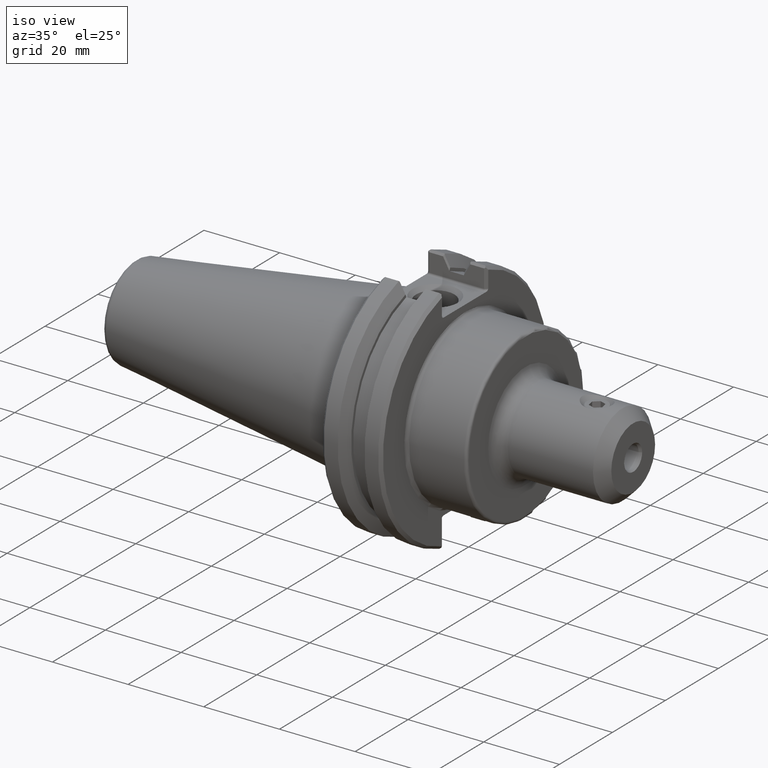
[diagram: clean part render]
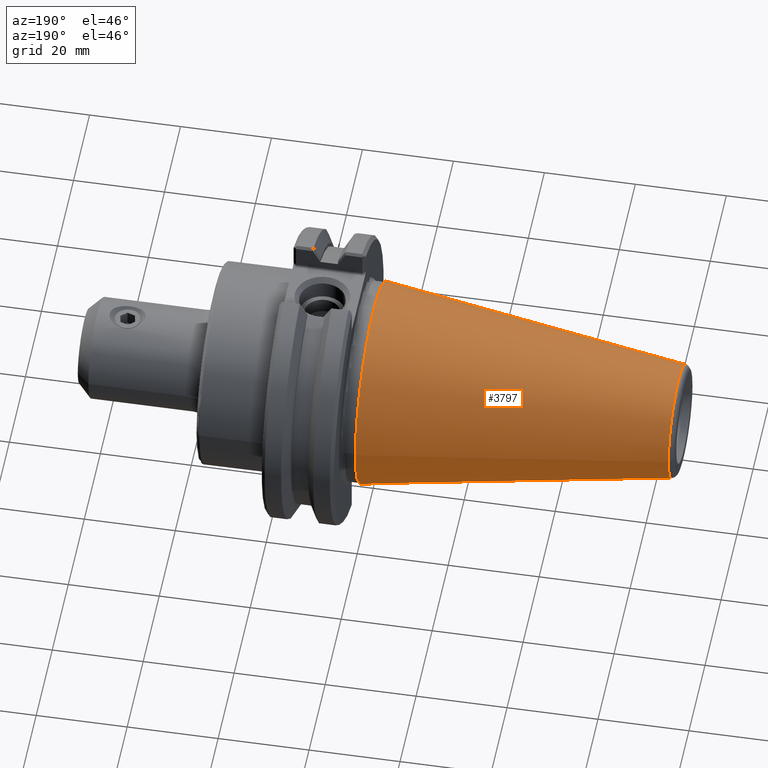
[diagram: tour spotlight — one face highlighted and labeled with its STEP entity id]
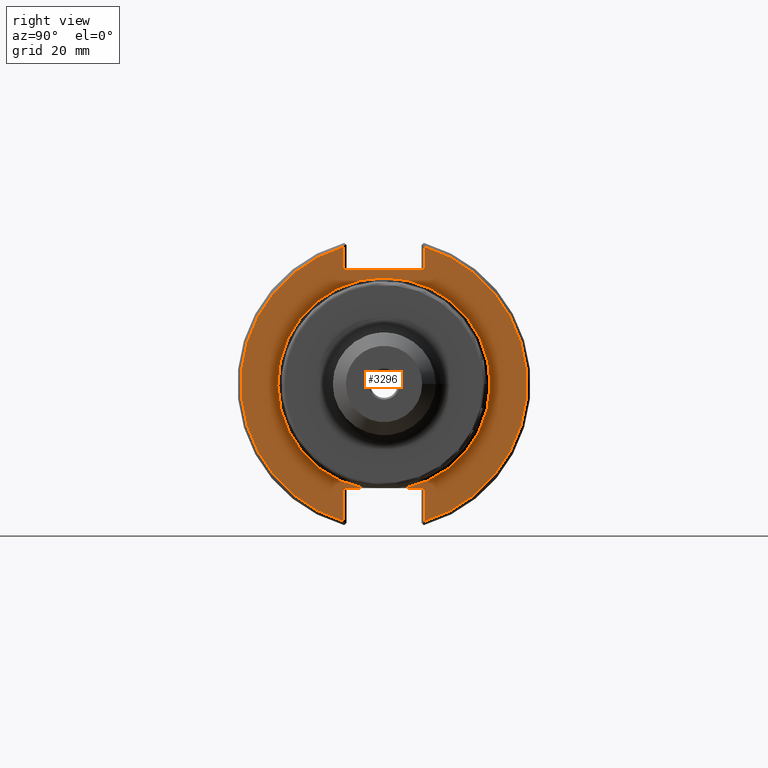
[diagram: tour spotlight — one face highlighted and labeled with its STEP entity id]
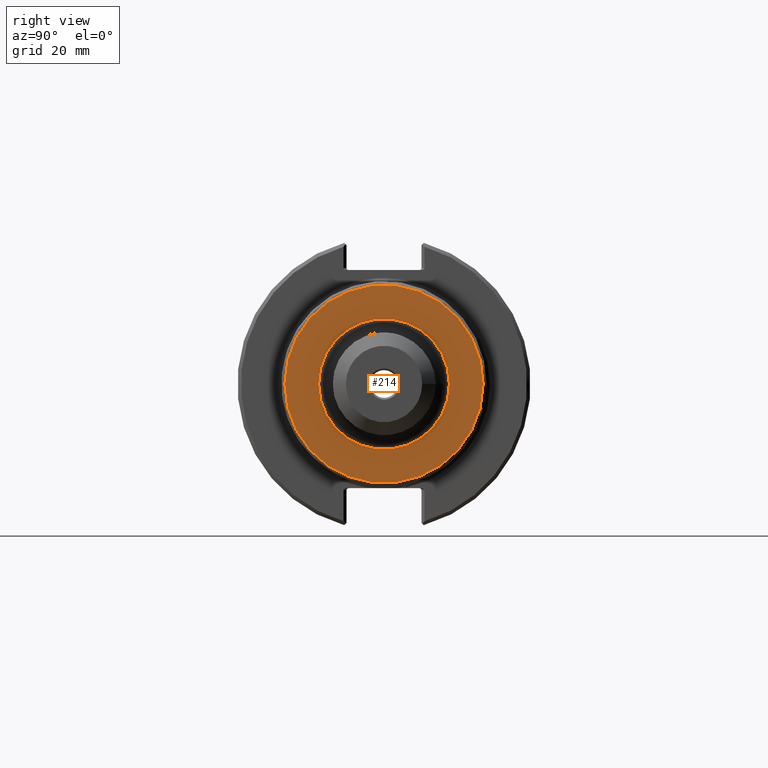
[diagram: tour spotlight — one face highlighted and labeled with its STEP entity id]
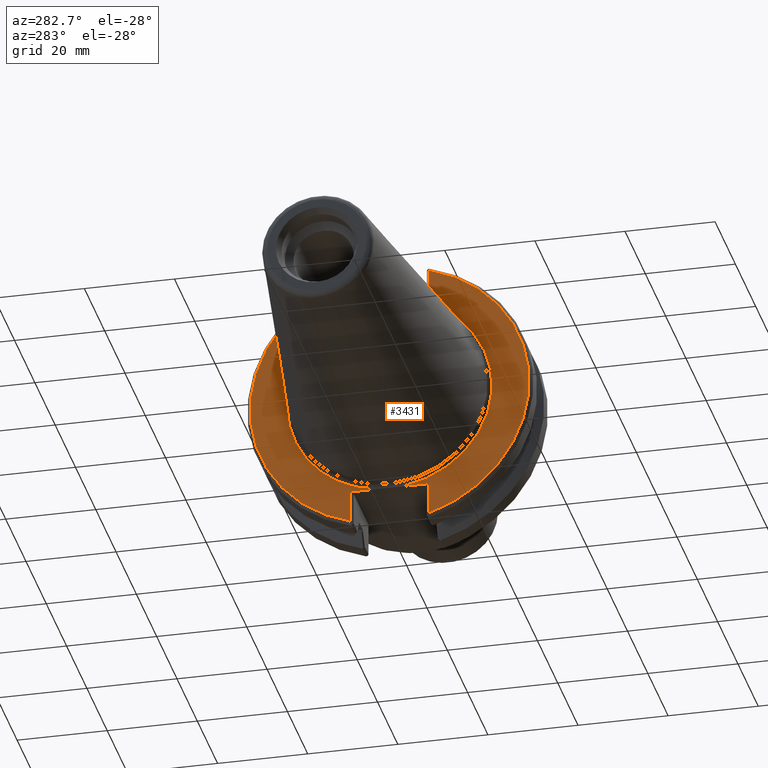
[diagram: tour spotlight — one face highlighted and labeled with its STEP entity id]
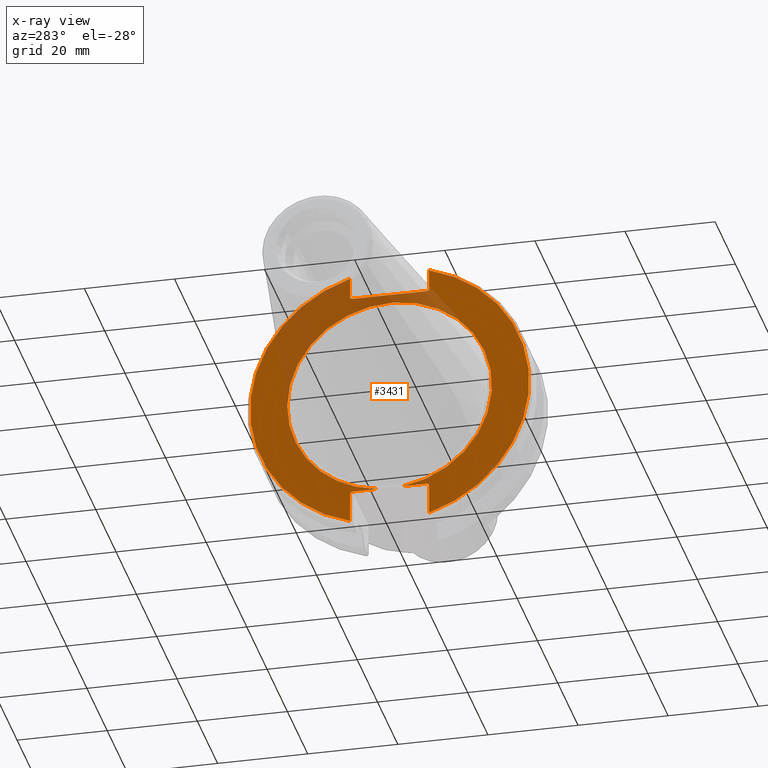
[diagram: x-ray of the same camera — body ghosted, this tour face saturated]
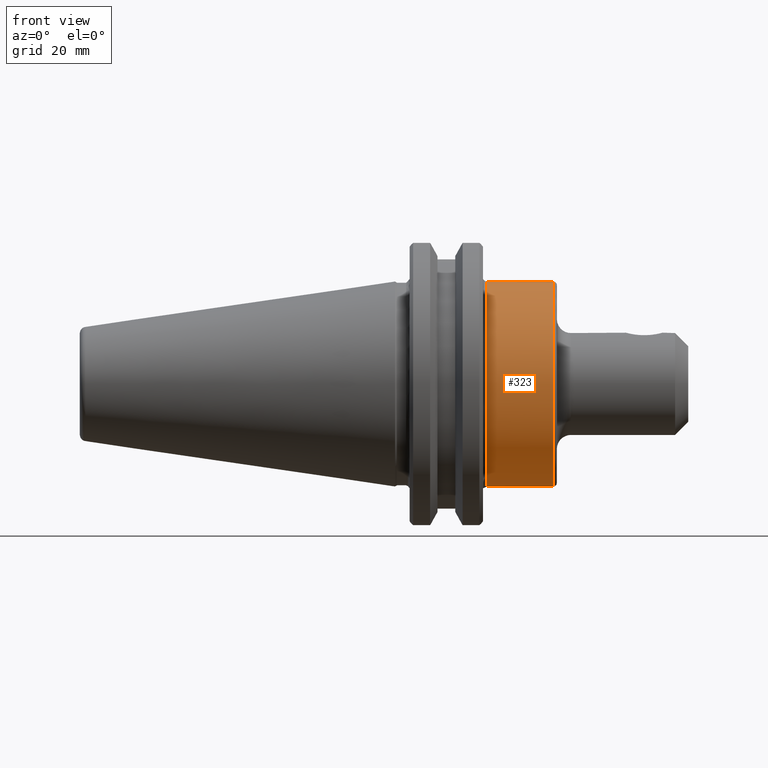
[diagram: tour spotlight — one face highlighted and labeled with its STEP entity id]
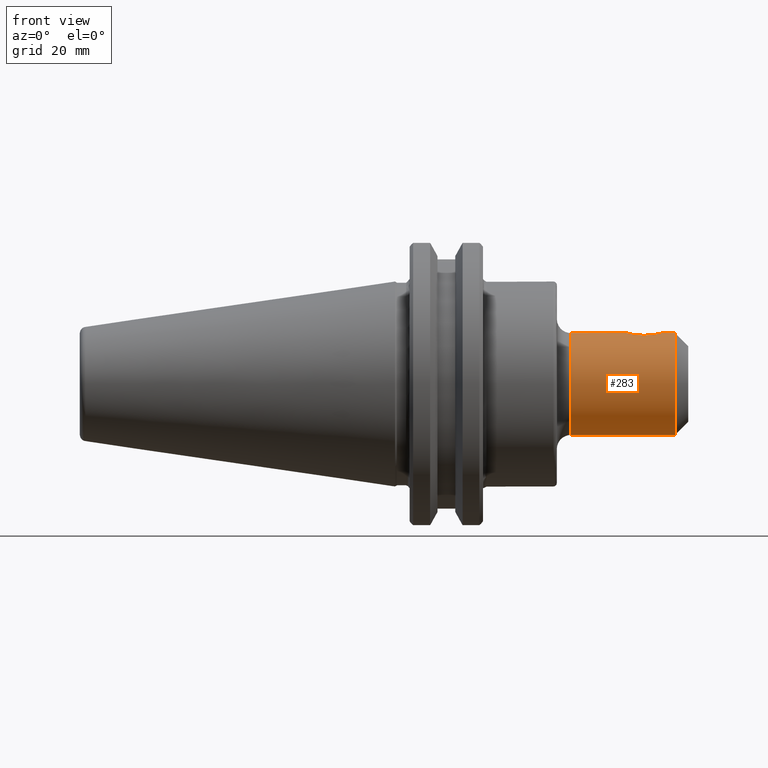
[diagram: tour spotlight — one face highlighted and labeled with its STEP entity id]
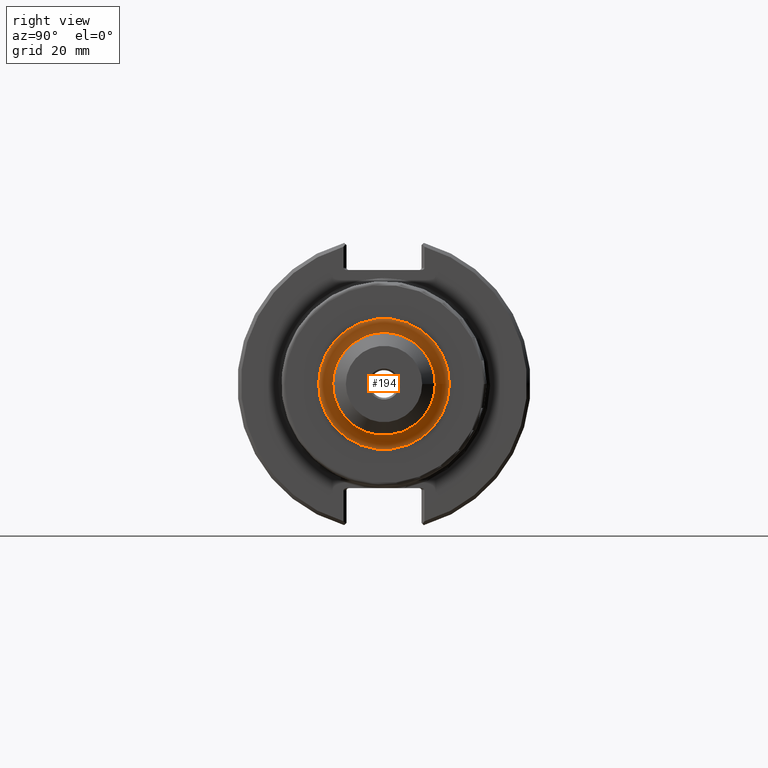
[diagram: tour spotlight — one face highlighted and labeled with its STEP entity id]
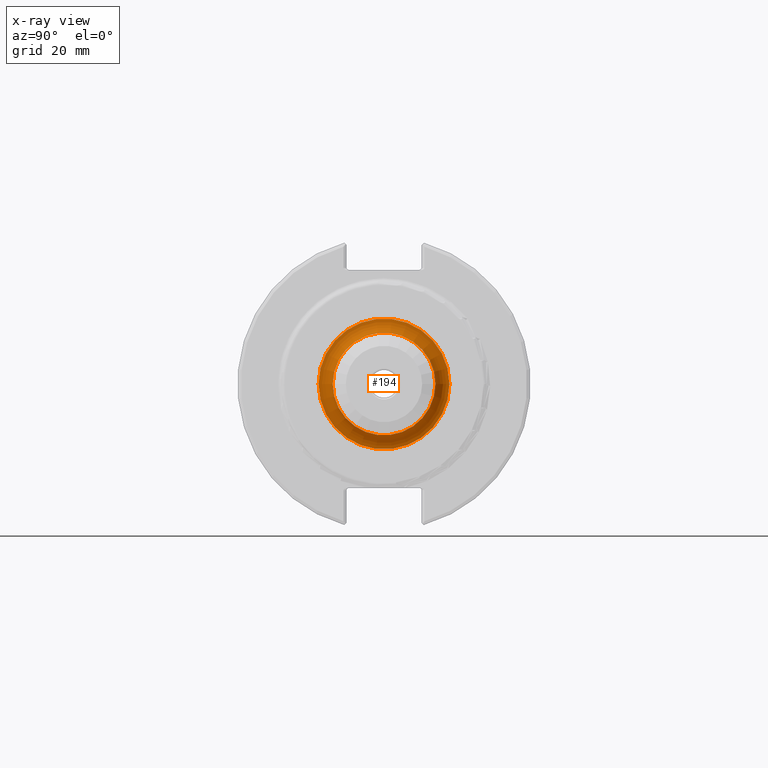
[diagram: x-ray of the same camera — body ghosted, this tour face saturated]
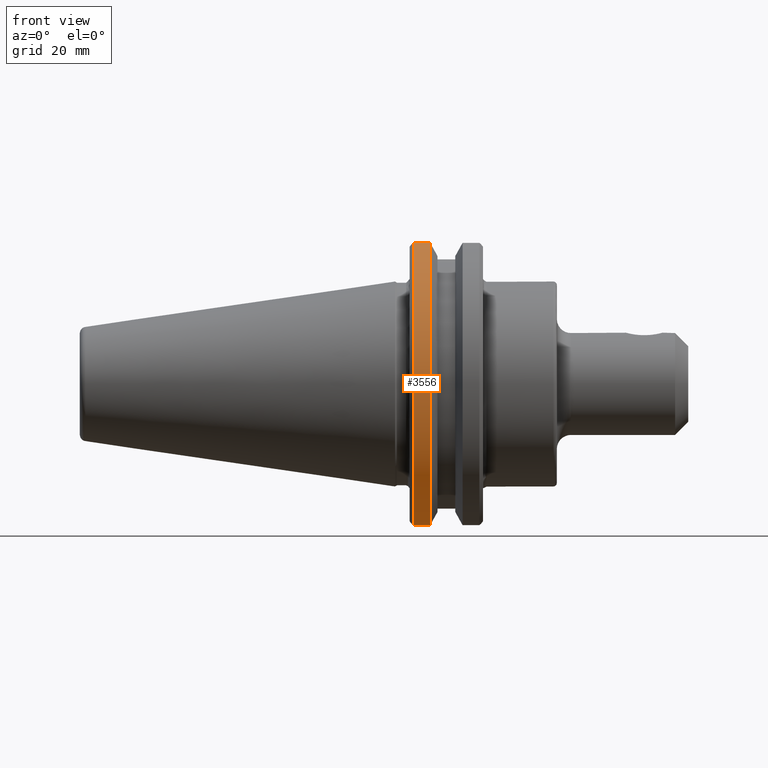
[diagram: tour spotlight — one face highlighted and labeled with its STEP entity id]
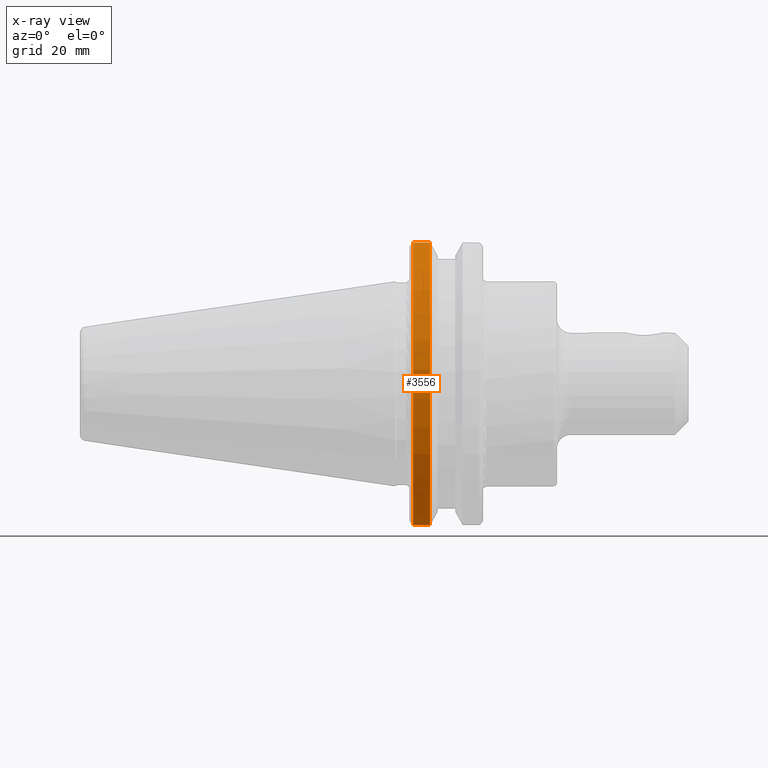
[diagram: x-ray of the same camera — body ghosted, this tour face saturated]
A machine part: a face-by-face anatomy tour. The part has 104 B-rep faces; the first image is the clean iso view, then the 8 largest visible faces are spotlighted one at a time (largest first), each with its STEP entity span.

Face 1 — auxiliary view, entity #3797. In plain terms, the highlighted conical surface has half-angle 8.297 deg.
Definition (entity closure, byte-faithful):
#3654=CARTESIAN_POINT('',(0.0,0.875,0.0));
#3655=VERTEX_POINT('',#3654);
#3656=CARTESIAN_POINT('',(0.0,-1.608021E-036,0.0));
#3657=DIRECTION('',(1.0,-1.624514E-013,0.0));
#3658=DIRECTION('',(1.624514E-013,1.0,0.0));
#3659=AXIS2_PLACEMENT_3D('',#3656,#3657,#3658);
#3660=CIRCLE('',#3659,0.875);
#3661=EDGE_CURVE('',#3655,#3655,#3660,.T.);
#3762=CARTESIAN_POINT('',(-2.640792437025113,0.48989126010311,-1.199848E-016));
#3763=VERTEX_POINT('',#3762);
#3764=CARTESIAN_POINT('',(-2.640792437025115,-1.132078E-014,-5.999239E-017));
#3765=DIRECTION('',(-1.0,0.0,0.0));
#3766=DIRECTION('',(0.0,-1.0,0.0));
#3767=AXIS2_PLACEMENT_3D('',#3764,#3765,#3766);
#3768=CIRCLE('',#3767,0.489891260103121);
#3769=EDGE_CURVE('',#3763,#3763,#3768,.T.);
#3786=CARTESIAN_POINT('',(-1.3435,-3.173511E-036,0.0));
#3787=DIRECTION('',(1.0,1.165233E-036,0.0));
#3788=DIRECTION('',(1.624514E-013,1.0,0.0));
#3789=AXIS2_PLACEMENT_3D('',#3786,#3787,#3788);
#3790=CONICAL_SURFACE('',#3789,0.679076388285061,8.296999999999994);
#3791=ORIENTED_EDGE('',*,*,#3661,.F.);
#3792=EDGE_LOOP('',(#3791));
#3793=FACE_OUTER_BOUND('',#3792,.T.);
#3794=ORIENTED_EDGE('',*,*,#3769,.F.);
#3795=EDGE_LOOP('',(#3794));
#3796=FACE_BOUND('',#3795,.T.);
#3797=ADVANCED_FACE('',(#3793,#3796),#3790,.T.);

Face 2 — right view, entity #3296. In plain terms, the highlighted planar face has unit normal (1, 0, 0).
Definition (entity closure, byte-faithful):
#329=CARTESIAN_POINT('',(0.75,0.17458808664969,-0.888));
#330=VERTEX_POINT('',#329);
#331=CARTESIAN_POINT('',(0.75,-0.17458808664969,-0.888));
#332=VERTEX_POINT('',#331);
#347=CARTESIAN_POINT('',(0.75,-7.340965E-037,0.0));
#348=DIRECTION('',(1.0,0.0,0.0));
#349=DIRECTION('',(0.0,-1.0,0.0));
#350=AXIS2_PLACEMENT_3D('',#347,#348,#349);
#351=CIRCLE('',#350,0.905);
#352=EDGE_CURVE('',#330,#332,#351,.T.);
#2554=CARTESIAN_POINT('',(0.75,0.316715728752819,0.972));
#2555=VERTEX_POINT('',#2554);
#2562=CARTESIAN_POINT('',(0.75,0.345000000000281,0.992));
#2563=VERTEX_POINT('',#2562);
#2564=CARTESIAN_POINT('',(0.75,0.316715728752819,0.992));
#2565=DIRECTION('',(1.0,0.0,0.0));
#2566=DIRECTION('',(0.0,1.0,0.0));
#2567=AXIS2_PLACEMENT_3D('',#2564,#2565,#2566);
#2568=ELLIPSE('',#2567,0.028284271247462,0.02);
#2569=EDGE_CURVE('',#2555,#2563,#2568,.T.);
#2612=CARTESIAN_POINT('',(0.75,0.345000000000281,1.170202973846762));
#2613=VERTEX_POINT('',#2612);
#2614=CARTESIAN_POINT('',(0.75,0.345000000000281,0.992));
#2615=DIRECTION('',(0.0,0.0,1.0));
#2616=VECTOR('',#2615,0.178202973846762);
#2617=LINE('',#2614,#2616);
#2618=EDGE_CURVE('',#2563,#2613,#2617,.T.);
#2636=CARTESIAN_POINT('',(0.75,-0.344999999999719,0.992));
#2637=VERTEX_POINT('',#2636);
#2644=CARTESIAN_POINT('',(0.75,-0.316715728752257,0.972));
#2645=VERTEX_POINT('',#2644);
#2646=CARTESIAN_POINT('',(0.75,-0.316715728752257,0.992));
#2647=DIRECTION('',(1.0,0.0,0.0));
#2648=DIRECTION('',(0.0,-1.0,0.0));
#2649=AXIS2_PLACEMENT_3D('',#2646,#2647,#2648);
#2650=ELLIPSE('',#2649,0.028284271247462,0.02);
#2651=EDGE_CURVE('',#2637,#2645,#2650,.T.);
#2743=CARTESIAN_POINT('',(0.75,-0.344999999999719,1.170202973846928));
#2744=VERTEX_POINT('',#2743);
#2751=CARTESIAN_POINT('',(0.75,-0.344999999999719,1.170202973846928));
#2752=DIRECTION('',(0.0,0.0,-1.0));
#2753=VECTOR('',#2752,0.178202973846928);
#2754=LINE('',#2751,#2753);
#2755=EDGE_CURVE('',#2744,#2637,#2754,.T.);
#2855=CARTESIAN_POINT('',(0.75,-0.316715728752198,-0.888));
#2856=VERTEX_POINT('',#2855);
#2863=CARTESIAN_POINT('',(0.75,-0.34499999999966,-0.908));
#2864=VERTEX_POINT('',#2863);
#2865=CARTESIAN_POINT('',(0.75,-0.316715728752198,-0.908));
#2866=DIRECTION('',(1.0,0.0,0.0));
#2867=DIRECTION('',(0.0,-1.0,0.0));
#2868=AXIS2_PLACEMENT_3D('',#2865,#2866,#2867);
#2869=ELLIPSE('',#2868,0.028284271247462,0.02);
#2870=EDGE_CURVE('',#2856,#2864,#2869,.T.);
#2920=CARTESIAN_POINT('',(0.75,-0.34499999999966,-1.170202973846945));
#2921=VERTEX_POINT('',#2920);
#2922=CARTESIAN_POINT('',(0.75,-0.34499999999966,-0.908));
#2923=DIRECTION('',(0.0,0.0,-1.0));
#2924=VECTOR('',#2923,0.262202973846945);
#2925=LINE('',#2922,#2924);
#2926=EDGE_CURVE('',#2864,#2921,#2925,.T.);
#2944=CARTESIAN_POINT('',(0.75,0.34500000000034,-0.908));
#2945=VERTEX_POINT('',#2944);
#2946=CARTESIAN_POINT('',(0.75,0.316715728752878,-0.888));
#2947=VERTEX_POINT('',#2946);
#2948=CARTESIAN_POINT('',(0.75,0.316715728752878,-0.908));
#2949=DIRECTION('',(1.0,0.0,0.0));
#2950=DIRECTION('',(0.0,1.0,0.0));
#2951=AXIS2_PLACEMENT_3D('',#2948,#2949,#2950);
#2952=ELLIPSE('',#2951,0.028284271247462,0.02);
#2953=EDGE_CURVE('',#2945,#2947,#2952,.T.);
#3051=CARTESIAN_POINT('',(0.75,0.34500000000034,-1.170202973846745));
#3052=VERTEX_POINT('',#3051);
#3059=CARTESIAN_POINT('',(0.75,0.34500000000034,-1.170202973846745));
#3060=DIRECTION('',(0.0,0.0,1.0));
#3061=VECTOR('',#3060,0.262202973846744);
#3062=LINE('',#3059,#3061);
#3063=EDGE_CURVE('',#3052,#2945,#3062,.T.);
#3156=CARTESIAN_POINT('',(0.75,0.316715728752819,0.972));
#3157=DIRECTION('',(0.0,-1.0,0.0));
#3158=VECTOR('',#3157,0.633431457505077);
#3159=LINE('',#3156,#3158);
#3160=EDGE_CURVE('',#2555,#2645,#3159,.T.);
#3225=CARTESIAN_POINT('',(0.75,-7.340965E-037,0.0));
#3226=DIRECTION('',(-1.0,0.0,0.0));
#3227=DIRECTION('',(0.0,-1.0,0.0));
#3228=AXIS2_PLACEMENT_3D('',#3225,#3226,#3227);
#3229=CIRCLE('',#3228,1.22);
#3230=EDGE_CURVE('',#2921,#2744,#3229,.T.);
#3259=CARTESIAN_POINT('',(0.75,1.0625,0.0));
#3260=DIRECTION('',(1.0,0.0,0.0));
#3261=DIRECTION('',(0.0,0.0,-1.0));
#3262=AXIS2_PLACEMENT_3D('',#3259,#3260,#3261);
#3263=PLANE('',#3262);
#3264=ORIENTED_EDGE('',*,*,#352,.F.);
#3265=CARTESIAN_POINT('',(0.75,0.174588086649691,-0.888));
#3266=DIRECTION('',(0.0,1.0,0.0));
#3267=VECTOR('',#3266,0.142127642103188);
#3268=LINE('',#3265,#3267);
#3269=EDGE_CURVE('',#330,#2947,#3268,.T.);
#3270=ORIENTED_EDGE('',*,*,#3269,.T.);
#3271=ORIENTED_EDGE('',*,*,#2953,.F.);
#3272=ORIENTED_EDGE('',*,*,#3063,.F.);
#3273=CARTESIAN_POINT('',(0.75,-7.340965E-037,0.0));
#3274=DIRECTION('',(-1.0,0.0,0.0));
#3275=DIRECTION('',(0.0,1.0,0.0));
#3276=AXIS2_PLACEMENT_3D('',#3273,#3274,#3275);
#3277=CIRCLE('',#3276,1.22);
#3278=EDGE_CURVE('',#2613,#3052,#3277,.T.);
#3279=ORIENTED_EDGE('',*,*,#3278,.F.);
#3280=ORIENTED_EDGE('',*,*,#2618,.F.);
#3281=ORIENTED_EDGE('',*,*,#2569,.F.);
#3282=ORIENTED_EDGE('',*,*,#3160,.T.);
#3283=ORIENTED_EDGE('',*,*,#2651,.F.);
#3284=ORIENTED_EDGE('',*,*,#2755,.F.);
#3285=ORIENTED_EDGE('',*,*,#3230,.F.);
#3286=ORIENTED_EDGE('',*,*,#2926,.F.);
#3287=ORIENTED_EDGE('',*,*,#2870,.F.);
#3288=CARTESIAN_POINT('',(0.75,-0.316715728752198,-0.888));
#3289=DIRECTION('',(0.0,1.0,0.0));
#3290=VECTOR('',#3289,0.142127642102508);
#3291=LINE('',#3288,#3290);
#3292=EDGE_CURVE('',#2856,#332,#3291,.T.);
#3293=ORIENTED_EDGE('',*,*,#3292,.T.);
#3294=EDGE_LOOP('',(#3264,#3270,#3271,#3272,#3279,#3280,#3281,#3282,#3283,#3284,#3285,#3286,#3287,#3293));
#3295=FACE_OUTER_BOUND('',#3294,.T.);
#3296=ADVANCED_FACE('',(#3295),#3263,.T.);

Face 3 — right view, entity #214. In plain terms, the highlighted planar face has unit normal (1, 0, 0).
Definition (entity closure, byte-faithful):
#183=CARTESIAN_POINT('',(1.38,0.5575,1.365481E-016));
#184=VERTEX_POINT('',#183);
#185=CARTESIAN_POINT('',(1.38,-1.398279E-037,0.0));
#186=DIRECTION('',(1.0,0.0,0.0));
#187=DIRECTION('',(0.0,-1.0,0.0));
#188=AXIS2_PLACEMENT_3D('',#185,#186,#187);
#189=CIRCLE('',#188,0.5575);
#190=EDGE_CURVE('',#184,#184,#189,.T.);
#195=CARTESIAN_POINT('',(1.38,0.4375,0.0));
#196=DIRECTION('',(1.0,0.0,0.0));
#197=DIRECTION('',(0.0,0.0,-1.0));
#198=AXIS2_PLACEMENT_3D('',#195,#196,#197);
#199=PLANE('',#198);
#200=CARTESIAN_POINT('',(1.38,0.845,-2.069653E-016));
#201=VERTEX_POINT('',#200);
#202=CARTESIAN_POINT('',(1.38,1.561963E-052,0.0));
#203=DIRECTION('',(-1.0,0.0,0.0));
#204=DIRECTION('',(0.0,-1.0,0.0));
#205=AXIS2_PLACEMENT_3D('',#202,#203,#204);
#206=CIRCLE('',#205,0.845);
#207=EDGE_CURVE('',#201,#201,#206,.T.);
#208=ORIENTED_EDGE('',*,*,#207,.F.);
#209=EDGE_LOOP('',(#208));
#210=FACE_OUTER_BOUND('',#209,.T.);
#211=ORIENTED_EDGE('',*,*,#190,.F.);
#212=EDGE_LOOP('',(#211));
#213=FACE_BOUND('',#212,.T.);
#214=ADVANCED_FACE('',(#210,#213),#199,.T.);

Face 4 — auxiliary view, entity #3431. An x-ray twin of the same camera follows (body ghosted, this face saturated) — the face is partly hidden behind the body. In plain terms, the highlighted planar face has unit normal (-1, 0, 0).
Definition (entity closure, byte-faithful):
#2489=CARTESIAN_POINT('',(0.125,0.345000000000281,0.992));
#2490=VERTEX_POINT('',#2489);
#2497=CARTESIAN_POINT('',(0.125,0.316715728752819,0.972));
#2498=VERTEX_POINT('',#2497);
#2499=CARTESIAN_POINT('',(0.125,0.316715728752819,0.992));
#2500=DIRECTION('',(-1.0,0.0,0.0));
#2501=DIRECTION('',(0.0,1.0,0.0));
#2502=AXIS2_PLACEMENT_3D('',#2499,#2500,#2501);
#2503=ELLIPSE('',#2502,0.028284271247462,0.02);
#2504=EDGE_CURVE('',#2490,#2498,#2503,.T.);
#2589=CARTESIAN_POINT('',(0.125,0.345000000000281,1.170202973846762));
#2590=VERTEX_POINT('',#2589);
#2597=CARTESIAN_POINT('',(0.125,0.345000000000281,1.170202973846762));
#2598=DIRECTION('',(0.0,0.0,-1.0));
#2599=VECTOR('',#2598,0.178202973846762);
#2600=LINE('',#2597,#2599);
#2601=EDGE_CURVE('',#2590,#2490,#2600,.T.);
#2701=CARTESIAN_POINT('',(0.125,-0.316715728752257,0.972));
#2702=VERTEX_POINT('',#2701);
#2709=CARTESIAN_POINT('',(0.125,-0.344999999999719,0.992));
#2710=VERTEX_POINT('',#2709);
#2711=CARTESIAN_POINT('',(0.125,-0.316715728752257,0.992));
#2712=DIRECTION('',(-1.0,0.0,0.0));
#2713=DIRECTION('',(0.0,-1.0,0.0));
#2714=AXIS2_PLACEMENT_3D('',#2711,#2712,#2713);
#2715=ELLIPSE('',#2714,0.028284271247462,0.02);
#2716=EDGE_CURVE('',#2702,#2710,#2715,.T.);
#2766=CARTESIAN_POINT('',(0.125,-0.344999999999719,1.170202973846928));
#2767=VERTEX_POINT('',#2766);
#2768=CARTESIAN_POINT('',(0.125,-0.344999999999719,0.992));
#2769=DIRECTION('',(0.0,0.0,1.0));
#2770=VECTOR('',#2769,0.178202973846928);
#2771=LINE('',#2768,#2770);
#2772=EDGE_CURVE('',#2710,#2767,#2771,.T.);
#2790=CARTESIAN_POINT('',(0.125,-0.344999999999765,-0.908));
#2791=VERTEX_POINT('',#2790);
#2792=CARTESIAN_POINT('',(0.125,-0.316715728752299,-0.888));
#2793=VERTEX_POINT('',#2792);
#2794=CARTESIAN_POINT('',(0.125,-0.316715728752299,-0.908));
#2795=DIRECTION('',(-1.0,0.0,0.0));
#2796=DIRECTION('',(0.0,-1.0,0.0));
#2797=AXIS2_PLACEMENT_3D('',#2794,#2795,#2796);
#2798=ELLIPSE('',#2797,0.028284271247467,0.02);
#2799=EDGE_CURVE('',#2791,#2793,#2798,.T.);
#2897=CARTESIAN_POINT('',(0.125,-0.344999999999765,-1.170202973846914));
#2898=VERTEX_POINT('',#2897);
#2905=CARTESIAN_POINT('',(0.125,-0.344999999999765,-1.170202973846914));
#2906=DIRECTION('',(0.0,0.0,1.0));
#2907=VECTOR('',#2906,0.262202973846914);
#2908=LINE('',#2905,#2907);
#2909=EDGE_CURVE('',#2898,#2791,#2908,.T.);
#3009=CARTESIAN_POINT('',(0.125,0.316715728752777,-0.888));
#3010=VERTEX_POINT('',#3009);
#3017=CARTESIAN_POINT('',(0.125,0.345000000000235,-0.908));
#3018=VERTEX_POINT('',#3017);
#3019=CARTESIAN_POINT('',(0.125,0.316715728752777,-0.908));
#3020=DIRECTION('',(-1.0,0.0,0.0));
#3021=DIRECTION('',(0.0,1.0,0.0));
#3022=AXIS2_PLACEMENT_3D('',#3019,#3020,#3021);
#3023=ELLIPSE('',#3022,0.028284271247457,0.02);
#3024=EDGE_CURVE('',#3010,#3018,#3023,.T.);
#3074=CARTESIAN_POINT('',(0.125,0.345000000000235,-1.170202973846776));
#3075=VERTEX_POINT('',#3074);
#3076=CARTESIAN_POINT('',(0.125,0.345000000000235,-0.908));
#3077=DIRECTION('',(0.0,0.0,-1.0));
#3078=VECTOR('',#3077,0.262202973846775);
#3079=LINE('',#3076,#3078);
#3080=EDGE_CURVE('',#3018,#3075,#3079,.T.);
#3147=CARTESIAN_POINT('',(0.125,0.316715728752819,0.972));
#3148=DIRECTION('',(0.0,-1.0,0.0));
#3149=VECTOR('',#3148,0.633431457505076);
#3150=LINE('',#3147,#3149);
#3151=EDGE_CURVE('',#2498,#2702,#3150,.T.);
#3349=CARTESIAN_POINT('',(0.125,-0.11171839597846,-0.888));
#3350=VERTEX_POINT('',#3349);
#3351=CARTESIAN_POINT('',(0.125,0.11171839597846,-0.888));
#3352=VERTEX_POINT('',#3351);
#3367=CARTESIAN_POINT('',(0.125,3.495698E-038,0.0));
#3368=DIRECTION('',(-1.0,0.0,0.0));
#3369=DIRECTION('',(0.0,-1.0,0.0));
#3370=AXIS2_PLACEMENT_3D('',#3367,#3368,#3369);
#3371=CIRCLE('',#3370,0.895);
#3372=EDGE_CURVE('',#3350,#3352,#3371,.T.);
#3388=CARTESIAN_POINT('',(0.125,1.0625,0.0));
#3389=DIRECTION('',(-1.0,0.0,0.0));
#3390=DIRECTION('',(0.0,0.0,1.0));
#3391=AXIS2_PLACEMENT_3D('',#3388,#3389,#3390);
#3392=PLANE('',#3391);
#3393=ORIENTED_EDGE('',*,*,#3372,.F.);
#3394=CARTESIAN_POINT('',(0.125,-0.316715728752299,-0.888));
#3395=DIRECTION('',(0.0,1.0,0.0));
#3396=VECTOR('',#3395,0.204997332773839);
#3397=LINE('',#3394,#3396);
#3398=EDGE_CURVE('',#2793,#3350,#3397,.T.);
#3399=ORIENTED_EDGE('',*,*,#3398,.F.);
#3400=ORIENTED_EDGE('',*,*,#2799,.F.);
#3401=ORIENTED_EDGE('',*,*,#2909,.F.);
#3402=CARTESIAN_POINT('',(0.125,-1.462367E-036,0.0));
#3403=DIRECTION('',(1.0,0.0,0.0));
#3404=DIRECTION('',(0.0,-1.0,0.0));
#3405=AXIS2_PLACEMENT_3D('',#3402,#3403,#3404);
#3406=CIRCLE('',#3405,1.22);
#3407=EDGE_CURVE('',#2767,#2898,#3406,.T.);
#3408=ORIENTED_EDGE('',*,*,#3407,.F.);
#3409=ORIENTED_EDGE('',*,*,#2772,.F.);
#3410=ORIENTED_EDGE('',*,*,#2716,.F.);
#3411=ORIENTED_EDGE('',*,*,#3151,.F.);
#3412=ORIENTED_EDGE('',*,*,#2504,.F.);
#3413=ORIENTED_EDGE('',*,*,#2601,.F.);
#3414=CARTESIAN_POINT('',(0.125,-1.462367E-036,0.0));
#3415=DIRECTION('',(1.0,0.0,0.0));
#3416=DIRECTION('',(0.0,1.0,0.0));
#3417=AXIS2_PLACEMENT_3D('',#3414,#3415,#3416);
#3418=CIRCLE('',#3417,1.22);
#3419=EDGE_CURVE('',#3075,#2590,#3418,.T.);
#3420=ORIENTED_EDGE('',*,*,#3419,.F.);
#3421=ORIENTED_EDGE('',*,*,#3080,.F.);
#3422=ORIENTED_EDGE('',*,*,#3024,.F.);
#3423=CARTESIAN_POINT('',(0.125,0.11171839597846,-0.888));
#3424=DIRECTION('',(0.0,1.0,0.0));
#3425=VECTOR('',#3424,0.204997332774318);
#3426=LINE('',#3423,#3425);
#3427=EDGE_CURVE('',#3352,#3010,#3426,.T.);
#3428=ORIENTED_EDGE('',*,*,#3427,.F.);
#3429=EDGE_LOOP('',(#3393,#3399,#3400,#3401,#3408,#3409,#3410,#3411,#3412,#3413,#3420,#3421,#3422,#3428));
#3430=FACE_OUTER_BOUND('',#3429,.T.);
#3431=ADVANCED_FACE('',(#3430),#3392,.T.);

Face 5 — front view, entity #323. In plain terms, the highlighted cylindrical surface (bore or boss wall) has radius 22.225 mm, axis along (1, 0, 0).
Definition (entity closure, byte-faithful):
#289=CARTESIAN_POINT('',(1.35,0.875,0.0));
#290=VERTEX_POINT('',#289);
#291=CARTESIAN_POINT('',(1.35,-3.495698E-038,0.0));
#292=DIRECTION('',(1.0,0.0,0.0));
#293=DIRECTION('',(0.0,-1.0,0.0));
#294=AXIS2_PLACEMENT_3D('',#291,#292,#293);
#295=CIRCLE('',#294,0.875);
#296=EDGE_CURVE('',#290,#290,#295,.T.);
#304=CARTESIAN_POINT('',(1.065,-3.670483E-037,0.0));
#305=DIRECTION('',(1.0,1.165233E-036,0.0));
#306=DIRECTION('',(1.624514E-013,1.0,0.0));
#307=AXIS2_PLACEMENT_3D('',#304,#305,#306);
#308=CYLINDRICAL_SURFACE('',#307,0.875);
#309=CARTESIAN_POINT('',(0.78,0.875,-2.143132E-016));
#310=VERTEX_POINT('',#309);
#311=CARTESIAN_POINT('',(0.78,-6.991395E-037,0.0));
#312=DIRECTION('',(-1.0,0.0,0.0));
#313=DIRECTION('',(0.0,-1.0,0.0));
#314=AXIS2_PLACEMENT_3D('',#311,#312,#313);
#315=CIRCLE('',#314,0.875);
#316=EDGE_CURVE('',#310,#310,#315,.T.);
#317=ORIENTED_EDGE('',*,*,#316,.F.);
#318=EDGE_LOOP('',(#317));
#319=FACE_OUTER_BOUND('',#318,.T.);
#320=ORIENTED_EDGE('',*,*,#296,.F.);
#321=EDGE_LOOP('',(#320));
#322=FACE_BOUND('',#321,.T.);
#323=ADVANCED_FACE('',(#319,#322),#308,.T.);

Face 6 — front view, entity #283. In plain terms, the highlighted cylindrical surface (bore or boss wall) has radius 11.1125 mm, axis along (1, 0, 0).
Definition (entity closure, byte-faithful):
#172=CARTESIAN_POINT('',(1.5,0.4375,0.0));
#173=VERTEX_POINT('',#172);
#174=CARTESIAN_POINT('',(1.5,0.0,0.0));
#175=DIRECTION('',(-1.0,0.0,0.0));
#176=DIRECTION('',(0.0,-1.0,0.0));
#177=AXIS2_PLACEMENT_3D('',#174,#175,#176);
#178=CIRCLE('',#177,0.4375);
#179=EDGE_CURVE('',#173,#173,#178,.T.);
#215=CARTESIAN_POINT('',(1.884,0.0,0.0));
#216=DIRECTION('',(1.0,0.0,0.0));
#217=DIRECTION('',(0.0,1.0,0.0));
#218=AXIS2_PLACEMENT_3D('',#215,#216,#217);
#219=CYLINDRICAL_SURFACE('',#218,0.4375);
#220=CARTESIAN_POINT('',(2.388,0.4375,0.0));
#221=VERTEX_POINT('',#220);
#222=CARTESIAN_POINT('',(2.388,0.0,0.0));
#223=DIRECTION('',(1.0,0.0,0.0));
#224=DIRECTION('',(0.0,1.0,0.0));
#225=AXIS2_PLACEMENT_3D('',#222,#223,#224);
#226=CIRCLE('',#225,0.4375);
#227=EDGE_CURVE('',#221,#221,#226,.T.);
#228=ORIENTED_EDGE('',*,*,#227,.F.);
#229=EDGE_LOOP('',(#228));
#230=FACE_OUTER_BOUND('',#229,.T.);
#231=CARTESIAN_POINT('',(2.281349486363408,0.0,0.4375));
#232=VERTEX_POINT('',#231);
#233=CARTESIAN_POINT('',(1.968650513636592,0.0,0.4375));
#234=VERTEX_POINT('',#233);
#235=CARTESIAN_POINT('',(2.281349486363408,5.463696E-018,0.4375));
#236=CARTESIAN_POINT('',(2.281349486363408,-0.018767954954047,0.4375));
#237=CARTESIAN_POINT('',(2.276489452361049,-0.038222551256578,0.436175638579391));
#238=CARTESIAN_POINT('',(2.258256035546535,-0.072806127101495,0.431751566076665));
#239=CARTESIAN_POINT('',(2.244915946814442,-0.087962493847376,0.428729168732518));
#240=CARTESIAN_POINT('',(2.216293623886651,-0.110580104275026,0.423448053411965));
#241=CARTESIAN_POINT('',(2.199162162778989,-0.119881594299109,0.420803163767327));
#242=CARTESIAN_POINT('',(2.162564191407046,-0.132092548959182,0.417131219779092));
#243=CARTESIAN_POINT('',(2.143092373995499,-0.135,0.416150513636593));
#244=CARTESIAN_POINT('',(2.106907626004502,-0.135,0.416150513636593));
#245=CARTESIAN_POINT('',(2.087435808592955,-0.132092548959182,0.417131219779092));
#246=CARTESIAN_POINT('',(2.050837837221012,-0.119881594299109,0.420803163767327));
#247=CARTESIAN_POINT('',(2.033706376113349,-0.110580104275026,0.423448053411965));
#248=CARTESIAN_POINT('',(2.005084053185558,-0.087962493847376,0.428729168732518));
#249=CARTESIAN_POINT('',(1.991743964453465,-0.072806127101495,0.431751566076665));
#250=CARTESIAN_POINT('',(1.973510547638951,-0.038222551256578,0.436175638579391));
#251=CARTESIAN_POINT('',(1.968650513636592,-0.018767954954047,0.4375));
#252=CARTESIAN_POINT('',(1.968650513636592,5.463696E-018,0.4375));
#253=B_SPLINE_CURVE_WITH_KNOTS('',3,(#235,#236,#237,#238,#239,#240,#241,#242,#243,#244,#245,#246,#247,#248,#249,#250,#251,#252),.UNSPECIFIED.,.F.,.U.,(4,2,2,2,2,2,2,2,4),(0.561751413191067,0.704763229940901,0.847775046690735,0.985638936536434,1.123502826382133,1.261366716227832,1.399230606073531,1.542242422823365,1.6852542395732),.UNSPECIFIED.);
#254=EDGE_CURVE('',#232,#234,#253,.T.);
#255=ORIENTED_EDGE('',*,*,#254,.T.);
#256=CARTESIAN_POINT('',(1.968650513636592,-2.458663E-017,0.4375));
#257=CARTESIAN_POINT('',(1.968650513636592,0.018767954954046,0.4375));
#258=CARTESIAN_POINT('',(1.973510547638951,0.038222551256578,0.436175638579391));
#259=CARTESIAN_POINT('',(1.991743964453465,0.072806127101495,0.431751566076665));
#260=CARTESIAN_POINT('',(2.005084053185558,0.087962493847376,0.428729168732518));
#261=CARTESIAN_POINT('',(2.033706376113349,0.110580104275026,0.423448053411965));
#262=CARTESIAN_POINT('',(2.050837837221012,0.119881594299109,0.420803163767327));
#263=CARTESIAN_POINT('',(2.087435808592955,0.132092548959182,0.417131219779092));
#264=CARTESIAN_POINT('',(2.106907626004502,0.135,0.416150513636593));
#265=CARTESIAN_POINT('',(2.125,0.135,0.416150513636593));
#266=CARTESIAN_POINT('',(2.143092373995499,0.135,0.416150513636593));
#267=CARTESIAN_POINT('',(2.162564191407046,0.132092548959182,0.417131219779092));
#268=CARTESIAN_POINT('',(2.199162162778989,0.119881594299109,0.420803163767327));
#269=CARTESIAN_POINT('',(2.216293623886651,0.110580104275026,0.423448053411965));
#270=CARTESIAN_POINT('',(2.244915946814442,0.087962493847376,0.428729168732518));
#271=CARTESIAN_POINT('',(2.258256035546535,0.072806127101495,0.431751566076665));
#272=CARTESIAN_POINT('',(2.276489452361049,0.038222551256578,0.436175638579391));
#273=CARTESIAN_POINT('',(2.281349486363408,0.018767954954047,0.4375));
#274=CARTESIAN_POINT('',(2.281349486363408,0.0,0.4375));
#275=B_SPLINE_CURVE_WITH_KNOTS('',3,(#256,#257,#258,#259,#260,#261,#262,#263,#264,#265,#266,#267,#268,#269,#270,#271,#272,#273,#274),.UNSPECIFIED.,.F.,.U.,(4,2,2,2,3,2,2,2,4),(1.6852542395732,1.828266056323034,1.971277873072868,2.109141762918568,2.247005652764266,2.384869542609965,2.522733432455664,2.665745249205498,2.808757065955333),.UNSPECIFIED.);
#276=EDGE_CURVE('',#234,#232,#275,.T.);
#277=ORIENTED_EDGE('',*,*,#276,.T.);
#278=EDGE_LOOP('',(#255,#277));
#279=FACE_BOUND('',#278,.T.);
#280=ORIENTED_EDGE('',*,*,#179,.F.);
#281=EDGE_LOOP('',(#280));
#282=FACE_BOUND('',#281,.T.);
#283=ADVANCED_FACE('',(#230,#279,#282),#219,.T.);

Face 7 — right view, entity #194. An x-ray twin of the same camera follows (body ghosted, this face saturated) — the face is partly hidden behind the body. In plain terms, the highlighted toroidal blend (fillet) surface has major radius 14.1605 mm and minor (blend) radius 3.048 mm.
Definition (entity closure, byte-faithful):
#167=CARTESIAN_POINT('',(1.5,0.0,0.0));
#168=DIRECTION('',(-1.0,-1.165233E-036,0.0));
#169=DIRECTION('',(0.0,0.0,1.0));
#170=AXIS2_PLACEMENT_3D('',#167,#168,#169);
#171=TOROIDAL_SURFACE('',#170,0.5575,0.12);
#172=CARTESIAN_POINT('',(1.5,0.4375,0.0));
#173=VERTEX_POINT('',#172);
#174=CARTESIAN_POINT('',(1.5,0.0,0.0));
#175=DIRECTION('',(-1.0,0.0,0.0));
#176=DIRECTION('',(0.0,-1.0,0.0));
#177=AXIS2_PLACEMENT_3D('',#174,#175,#176);
#178=CIRCLE('',#177,0.4375);
#179=EDGE_CURVE('',#173,#173,#178,.T.);
#180=ORIENTED_EDGE('',*,*,#179,.T.);
#181=EDGE_LOOP('',(#180));
#182=FACE_OUTER_BOUND('',#181,.T.);
#183=CARTESIAN_POINT('',(1.38,0.5575,1.365481E-016));
#184=VERTEX_POINT('',#183);
#185=CARTESIAN_POINT('',(1.38,-1.398279E-037,0.0));
#186=DIRECTION('',(1.0,0.0,0.0));
#187=DIRECTION('',(0.0,-1.0,0.0));
#188=AXIS2_PLACEMENT_3D('',#185,#186,#187);
#189=CIRCLE('',#188,0.5575);
#190=EDGE_CURVE('',#184,#184,#189,.T.);
#191=ORIENTED_EDGE('',*,*,#190,.T.);
#192=EDGE_LOOP('',(#191));
#193=FACE_BOUND('',#192,.T.);
#194=ADVANCED_FACE('',(#182,#193),#171,.F.);

Face 8 — front view, entity #3556. An x-ray twin of the same camera follows (body ghosted, this face saturated) — the face is partly hidden behind the body. In plain terms, the highlighted cylindrical surface (partial cylindrical patch) has radius 31.75 mm, axis along (1, 0, 0).
Definition (entity closure, byte-faithful):
#1936=CARTESIAN_POINT('',(0.155,-0.339628138321233,1.20297661143534));
#1937=VERTEX_POINT('',#1936);
#1951=CARTESIAN_POINT('',(0.299526127773263,-0.339628138321233,1.20297661143534));
#1952=VERTEX_POINT('',#1951);
#1953=CARTESIAN_POINT('',(0.155,-0.339628138321233,1.20297661143534));
#1954=DIRECTION('',(1.0,0.0,0.0));
#1955=VECTOR('',#1954,0.144526127773263);
#1956=LINE('',#1953,#1955);
#1957=EDGE_CURVE('',#1937,#1952,#1956,.T.);
#3478=CARTESIAN_POINT('',(0.299526127773263,-0.339628138321216,-1.202976611435345));
#3479=VERTEX_POINT('',#3478);
#3493=CARTESIAN_POINT('',(0.155,-0.339628138321216,-1.202976611435345));
#3494=VERTEX_POINT('',#3493);
#3495=CARTESIAN_POINT('',(0.299526127773263,-0.339628138321216,-1.202976611435345));
#3496=DIRECTION('',(-1.0,0.0,0.0));
#3497=VECTOR('',#3496,0.144526127773263);
#3498=LINE('',#3495,#3497);
#3499=EDGE_CURVE('',#3479,#3494,#3498,.T.);
#3525=CARTESIAN_POINT('',(0.155,-1.427410E-036,0.0));
#3526=DIRECTION('',(-1.0,1.624514E-013,0.0));
#3527=DIRECTION('',(-1.624514E-013,-1.0,0.0));
#3528=AXIS2_PLACEMENT_3D('',#3525,#3526,#3527);
#3529=CIRCLE('',#3528,1.25);
#3530=EDGE_CURVE('',#3494,#1937,#3529,.T.);
#3539=CARTESIAN_POINT('',(0.4375,-1.098232E-036,0.0));
#3540=DIRECTION('',(1.0,1.165233E-036,0.0));
#3541=DIRECTION('',(1.624514E-013,1.0,0.0));
#3542=AXIS2_PLACEMENT_3D('',#3539,#3540,#3541);
#3543=CYLINDRICAL_SURFACE('',#3542,1.25);
#3544=ORIENTED_EDGE('',*,*,#3499,.F.);
#3545=CARTESIAN_POINT('',(0.299526127773263,-1.259003E-036,0.0));
#3546=DIRECTION('',(-1.0,1.624514E-013,0.0));
#3547=DIRECTION('',(1.624514E-013,1.0,0.0));
#3548=AXIS2_PLACEMENT_3D('',#3545,#3546,#3547);
#3549=CIRCLE('',#3548,1.25);
#3550=EDGE_CURVE('',#3479,#1952,#3549,.T.);
#3551=ORIENTED_EDGE('',*,*,#3550,.T.);
#3552=ORIENTED_EDGE('',*,*,#1957,.F.);
#3553=ORIENTED_EDGE('',*,*,#3530,.F.);
#3554=EDGE_LOOP('',(#3544,#3551,#3552,#3553));
#3555=FACE_OUTER_BOUND('',#3554,.T.);
#3556=ADVANCED_FACE('',(#3555),#3543,.T.);